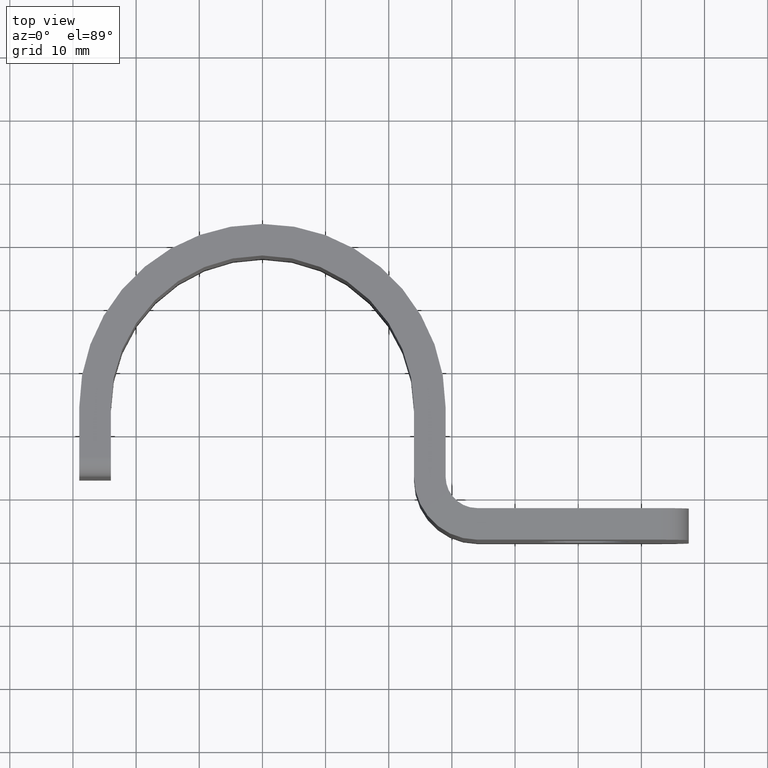
[diagram: clean part render]
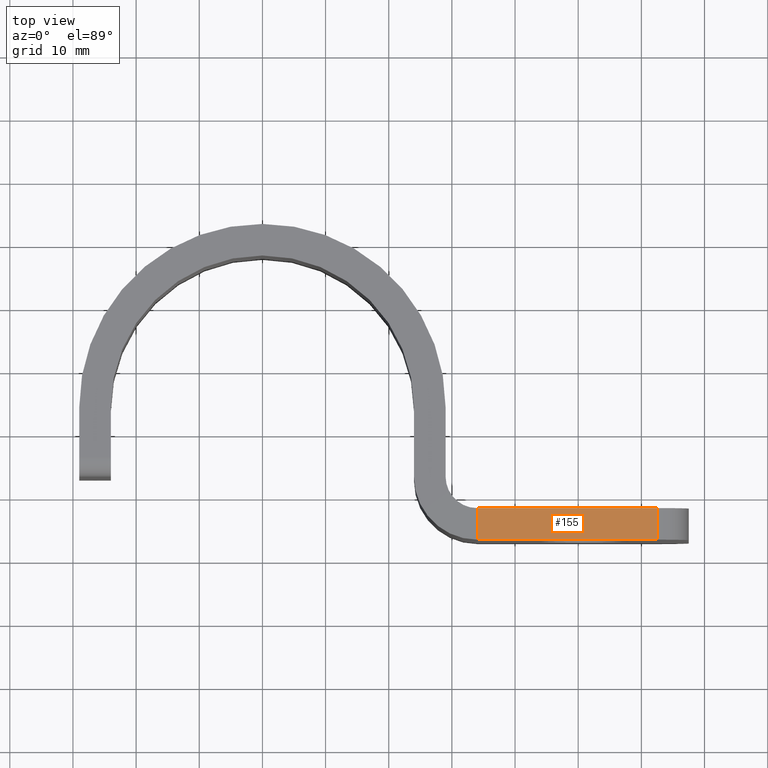
[diagram: same view with one face highlighted and labeled with its STEP entity id]
A machine part, top view. The second image highlights one B-rep face of the part: STEP entity #155.
In plain terms, the highlighted planar face has unit normal (0, 0, 1).
Its self-contained STEP definition (entity closure, byte-faithful):
#16 = AXIS2_PLACEMENT_3D ( 'NONE', #194, #257, #651 ) ;
#30 = LINE ( 'NONE', #309, #396 ) ;
#61 = CARTESIAN_POINT ( 'NONE',  ( 62.50000000000044054, 2.999999999999891642, 19.99999999999957367 ) ) ;
#70 = VERTEX_POINT ( 'NONE', #621 ) ;
#72 = EDGE_CURVE ( 'NONE', #427, #70, #760, .T. ) ;
#130 = VECTOR ( 'NONE', #729, 1000.000000000000000 ) ;
#142 = ORIENTED_EDGE ( 'NONE', *, *, #562, .T. ) ;
#155 = ADVANCED_FACE ( 'NONE', ( #325 ), #583, .T. ) ;
#169 = EDGE_LOOP ( 'NONE', ( #142, #244, #284, #228 ) ) ;
#185 = CARTESIAN_POINT ( 'NONE',  ( 24.00000000000046541, 8.000000000000229150, 19.99999999999957367 ) ) ;
#194 = CARTESIAN_POINT ( 'NONE',  ( 34.00000000000025580, 13.00000000000034461, 19.99999999999868550 ) ) ;
#203 = DIRECTION ( 'NONE',  ( 1.221245327087673772E-15, -1.000000000000000000, -1.110223024625158020E-16 ) ) ;
#214 = VERTEX_POINT ( 'NONE', #61 ) ;
#228 = ORIENTED_EDGE ( 'NONE', *, *, #379, .T. ) ;
#232 = CARTESIAN_POINT ( 'NONE',  ( 34.00000000000025580, 8.000000000000229150, 19.99999999999957367 ) ) ;
#244 = ORIENTED_EDGE ( 'NONE', *, *, #323, .T. ) ;
#257 = DIRECTION ( 'NONE',  ( 1.110223024625155185E-16, 1.942890293094023946E-16, 1.000000000000000000 ) ) ;
#279 = CARTESIAN_POINT ( 'NONE',  ( 34.00000000000025580, 2.999999999999891642, 19.99999999999912959 ) ) ;
#284 = ORIENTED_EDGE ( 'NONE', *, *, #72, .F. ) ;
#287 = LINE ( 'NONE', #549, #411 ) ;
#295 = VERTEX_POINT ( 'NONE', #279 ) ;
#309 = CARTESIAN_POINT ( 'NONE',  ( 24.00000000000002132, 3.000000000000335731, 19.99999999999957367 ) ) ;
#323 = EDGE_CURVE ( 'NONE', #214, #70, #338, .T. ) ;
#325 = FACE_OUTER_BOUND ( 'NONE', #169, .T. ) ;
#338 = LINE ( 'NONE', #400, #130 ) ;
#379 = EDGE_CURVE ( 'NONE', #427, #295, #287, .T. ) ;
#396 = VECTOR ( 'NONE', #802, 1000.000000000000000 ) ;
#400 = CARTESIAN_POINT ( 'NONE',  ( 62.50000000000133582, 13.00000000000012257, 19.99999999999912959 ) ) ;
#411 = VECTOR ( 'NONE', #203, 1000.000000000000000 ) ;
#427 = VERTEX_POINT ( 'NONE', #232 ) ;
#441 = DIRECTION ( 'NONE',  ( 1.000000000000000000, 1.054711873393897727E-15, -1.387778780781444443E-16 ) ) ;
#453 = VECTOR ( 'NONE', #441, 1000.000000000000000 ) ;
#549 = CARTESIAN_POINT ( 'NONE',  ( 34.00000000000025580, 8.000000000000229150, 19.99999999999957367 ) ) ;
#562 = EDGE_CURVE ( 'NONE', #295, #214, #30, .T. ) ;
#583 = PLANE ( 'NONE',  #16 ) ;
#621 = CARTESIAN_POINT ( 'NONE',  ( 62.50000000000044054, 8.000000000000007105, 19.99999999999957367 ) ) ;
#651 = DIRECTION ( 'NONE',  ( 1.000000000000000000, 1.665334536937733332E-16, -1.110223024625155554E-16 ) ) ;
#729 = DIRECTION ( 'NONE',  ( -5.551115123125790098E-17, 1.000000000000000000, 1.110223024625158020E-16 ) ) ;
#760 = LINE ( 'NONE', #185, #453 ) ;
#802 = DIRECTION ( 'NONE',  ( 1.000000000000000000, 1.054711873393897727E-15, -1.387778780781444443E-16 ) ) ;